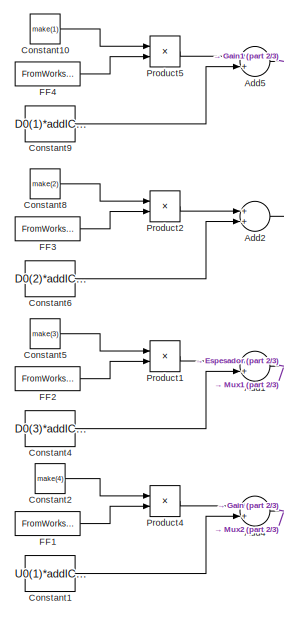
[diagram: root canvas - part 1/3, left side, full height]
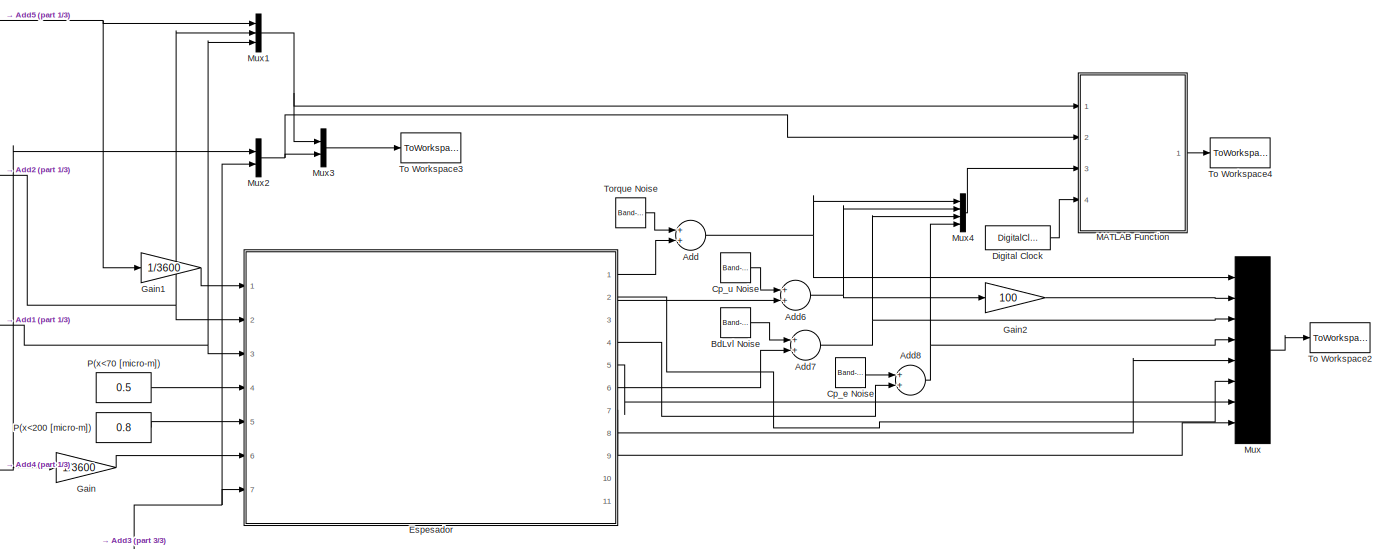
[diagram: root canvas - part 2/3, full width, middle band]
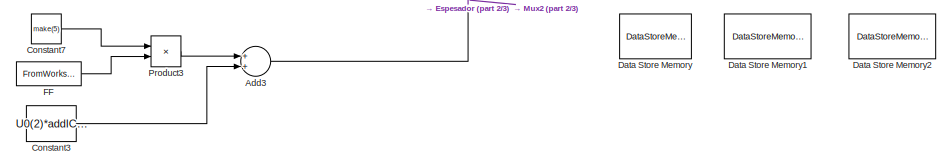
[diagram: root canvas - part 3/3, bottom left region]
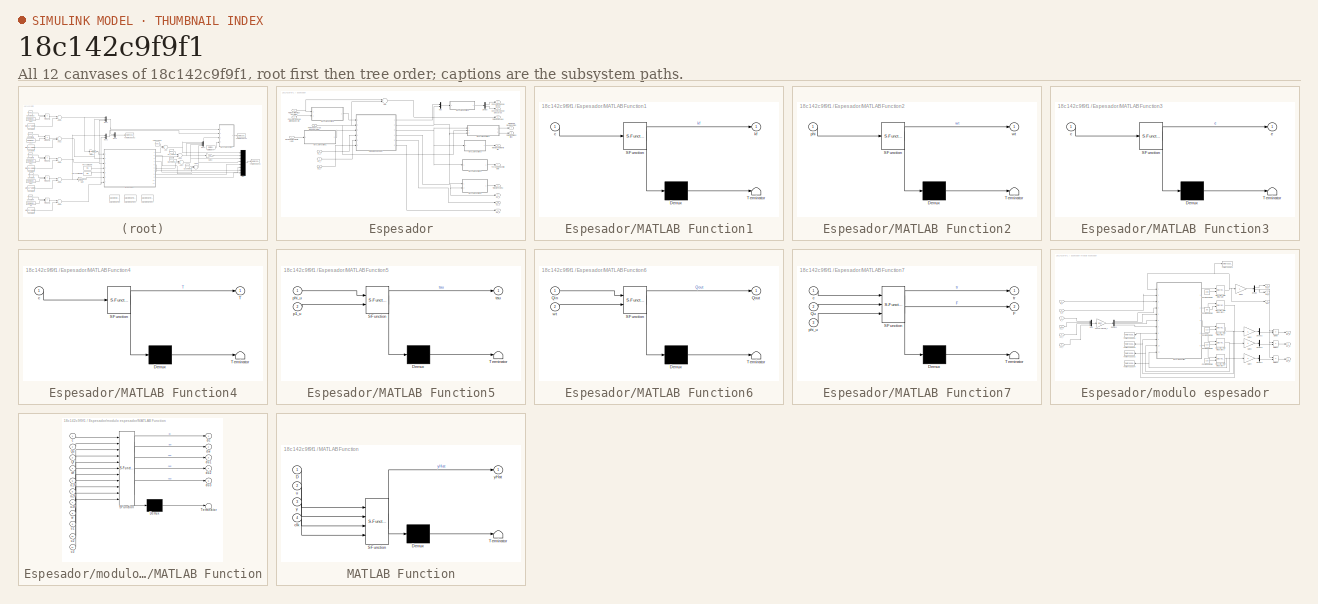
[diagram: thumbnail index - all 12 canvases of the model, root first then tree order]
MODEL slx_18c142c9f9f1
KIND model
CONFIG AbsTol = auto
CONFIG EnableMultiTasking = on
CONFIG FixedStep = auto
CONFIG MaxStep = auto
CONFIG MinStep = auto
CONFIG RelTol = 1e-3
CONFIG SampleTimeConstraint = Unconstrained
CONFIG Solver = VariableStepAuto
CONFIG SolverName = VariableStepAuto
CONFIG StartTime = 0.0
CONFIG StopTime = simTime
BLOCK [Sum] Add
  InputSameDT = off
  OutDataTypeStr = Inherit: Inherit via internal rule
  Ports = [2, 1]
  SaturateOnIntegerOverflow = off
BLOCK [Sum] Add1
  InputSameDT = off
  OutDataTypeStr = Inherit: Inherit via internal rule
  Ports = [2, 1]
  SaturateOnIntegerOverflow = off
BLOCK [Sum] Add2
  InputSameDT = off
  OutDataTypeStr = Inherit: Inherit via internal rule
  Ports = [2, 1]
  SaturateOnIntegerOverflow = off
BLOCK [Sum] Add3
  InputSameDT = off
  OutDataTypeStr = Inherit: Inherit via internal rule
  Ports = [2, 1]
  SaturateOnIntegerOverflow = off
BLOCK [Sum] Add4
  InputSameDT = off
  OutDataTypeStr = Inherit: Inherit via internal rule
  Ports = [2, 1]
  SaturateOnIntegerOverflow = off
BLOCK [Sum] Add5
  InputSameDT = off
  OutDataTypeStr = Inherit: Inherit via internal rule
  Ports = [2, 1]
  SaturateOnIntegerOverflow = off
BLOCK [Sum] Add6
  InputSameDT = off
  OutDataTypeStr = Inherit: Inherit via internal rule
  Ports = [2, 1]
  SaturateOnIntegerOverflow = off
BLOCK [Sum] Add7
  InputSameDT = off
  OutDataTypeStr = Inherit: Inherit via internal rule
  Ports = [2, 1]
  SaturateOnIntegerOverflow = off
BLOCK [Sum] Add8
  InputSameDT = off
  OutDataTypeStr = Inherit: Inherit via internal rule
  Ports = [2, 1]
  SaturateOnIntegerOverflow = off
BLOCK [Reference] BdLvl Noise  REF=simulink/Sources/Band-Limited
White Noise
  Ports = [0, 1]
  SourceBlock = simulink/Sources/Band-Limited\nWhite Noise
  SourceProductBaseCode = SL
  SourceProductName = Simulink
  SourceType = Band-Limited White Noise.
BLOCK [Constant] Constant1
  Value = U0(1)*addICInSimulation(4)
BLOCK [Constant] Constant10
  Value = make(1)
BLOCK [Constant] Constant2
  Value = make(4)
BLOCK [Constant] Constant3
  Value = U0(2)*addICInSimulation(5)
BLOCK [Constant] Constant4
  Value = D0(3)*addICInSimulation(3)
BLOCK [Constant] Constant5
  Value = make(3)
BLOCK [Constant] Constant6
  Value = D0(2)*addICInSimulation(2)
BLOCK [Constant] Constant7
  Value = make(5)
BLOCK [Constant] Constant8
  Value = make(2)
BLOCK [Constant] Constant9
  Value = D0(1)*addICInSimulation(1)
BLOCK [Reference] Cp_e Noise  REF=simulink/Sources/Band-Limited
White Noise
  Ports = [0, 1]
  SourceBlock = simulink/Sources/Band-Limited\nWhite Noise
  SourceProductBaseCode = SL
  SourceProductName = Simulink
  SourceType = Band-Limited White Noise.
BLOCK [Reference] Cp_u Noise  REF=simulink/Sources/Band-Limited
White Noise
  Ports = [0, 1]
  SourceBlock = simulink/Sources/Band-Limited\nWhite Noise
  SourceProductBaseCode = SL
  SourceProductName = Simulink
  SourceType = Band-Limited White Noise.
BLOCK [DataStoreMemory] Data Store Memory
  DataStoreName = uPastValues
  InitialValue = [U0]'*ones(1,maxUDelay);
  OutDataTypeStr = double
  ReadBeforeWriteMsg = warning
  ShowAdditionalParam = off
  SignalType = real
  VectorParams1D = off
  WriteAfterReadMsg = warning
  WriteAfterWriteMsg = warning
BLOCK [DataStoreMemory] Data Store Memory1
  DataStoreName = yPastValues
  InitialValue = Y0'*ones(1,maxYDelay)
  OutDataTypeStr = double
  ReadBeforeWriteMsg = warning
  ShowAdditionalParam = off
  SignalType = real
  VectorParams1D = off
  WriteAfterReadMsg = warning
  WriteAfterWriteMsg = warning
BLOCK [DataStoreMemory] Data Store Memory2
  DataStoreName = dPastValues
  InitialValue = D0'*ones(1,maxDDelay)
  OutDataTypeStr = double
  ReadBeforeWriteMsg = warning
  ShowAdditionalParam = off
  SignalType = real
  VectorParams1D = off
  WriteAfterReadMsg = warning
  WriteAfterWriteMsg = warning
BLOCK [DigitalClock] Digital Clock
BLOCK [SubSystem] Espesador
  Ports = [7, 11]
  RequestExecContextInheritance = off
  Variant = off
BLOCK [Sum] Espesador/Add
  InputSameDT = off
  Inputs = +-
  OutDataTypeStr = Inherit: Inherit via internal rule
  Ports = [2, 1]
  SaturateOnIntegerOverflow = off
BLOCK [Inport] Espesador/Concentracion de Alimentacion (wt)
  IconDisplay = Port number
  Port = 2
BLOCK [Outport] Espesador/Concentracion de Descarga
  IconDisplay = Port number
  Port = 3
BLOCK [Outport] Espesador/Concentracion de Revlse
  IconDisplay = Port number
  Port = 4
BLOCK [Demux] Espesador/Demux
  DisplayOption = bar
  Outputs = 2
  Ports = [1, 2]
BLOCK [Inport] Espesador/Dosis de Floculante (gpt)
  IconDisplay = Port number
  Port = 7
BLOCK [Inport] Espesador/Flujo de Alimentacion (m3//s)
  IconDisplay = Port number
BLOCK [Inport] Espesador/Flujo de Descarga Entrada (m3//s)
  IconDisplay = Port number
  Port = 6
BLOCK [Outport] Espesador/Flujo de Revalse
  IconDisplay = Port number
  Port = 5
BLOCK [Outport] Espesador/Flujo de Solidos [tpd]
  IconDisplay = Port number
  Port = 8
BLOCK [SubSystem] Espesador/MATLAB Function1
  ErrorFcn = Stateflow.Translate.translate
  PermitHierarchicalResolution = ExplicitOnly
  Ports = [1, 1]
  RequestExecContextInheritance = off
  SFBlockType = MATLAB Function
  TreatAsAtomicUnit = on
  Variant = off
BLOCK [Demux] Espesador/MATLAB Function1/ Demux 
  Outputs = 1
  Ports = [1, 1]
BLOCK [S-Function] Espesador/MATLAB Function1/ SFunction 
  EnableBusSupport = on
  FunctionName = sf_sfun
  Parameters = b0,b1,b2,b3,b4,v_max
  PortCounts = [1 2]
  Ports = [1, 2]
  SFcnIsStateOwnerBlock = off
  SFunctionDeploymentMode = off
  Tag = Stateflow S-Function rf_thickener_open_loop_prbs 1
BLOCK [Terminator] Espesador/MATLAB Function1/ Terminator 
BLOCK [Inport] Espesador/MATLAB Function1/c
  IconDisplay = Port number
BLOCK [Outport] Espesador/MATLAB Function1/kf
  IconDisplay = Port number
BLOCK [SubSystem] Espesador/MATLAB Function2
  ErrorFcn = Stateflow.Translate.translate
  PermitHierarchicalResolution = ExplicitOnly
  Ports = [1, 1]
  RequestExecContextInheritance = off
  SFBlockType = MATLAB Function
  TreatAsAtomicUnit = on
  Variant = off
BLOCK [Demux] Espesador/MATLAB Function2/ Demux 
  Outputs = 1
  Ports = [1, 1]
BLOCK [S-Function] Espesador/MATLAB Function2/ SFunction 
  EnableBusSupport = on
  FunctionName = sf_sfun
  Parameters = rho_f,rho_s
  PortCounts = [1 2]
  Ports = [1, 2]
  SFcnIsStateOwnerBlock = off
  SFunctionDeploymentMode = off
  Tag = Stateflow S-Function rf_thickener_open_loop_prbs 3
BLOCK [Terminator] Espesador/MATLAB Function2/ Terminator 
BLOCK [Inport] Espesador/MATLAB Function2/phi
  IconDisplay = Port number
BLOCK [Outport] Espesador/MATLAB Function2/wt
  IconDisplay = Port number
BLOCK [SubSystem] Espesador/MATLAB Function3
  ErrorFcn = Stateflow.Translate.translate
  PermitHierarchicalResolution = ExplicitOnly
  Ports = [1, 1]
  RequestExecContextInheritance = off
  SFBlockType = MATLAB Function
  TreatAsAtomicUnit = on
  Variant = off
BLOCK [Demux] Espesador/MATLAB Function3/ Demux 
  Outputs = 1
  Ports = [1, 1]
BLOCK [S-Function] Espesador/MATLAB Function3/ SFunction 
  EnableBusSupport = on
  FunctionName = sf_sfun
  Parameters = B,Z,phi_c
  PortCounts = [1 2]
  Ports = [1, 2]
  SFcnIsStateOwnerBlock = off
  SFunctionDeploymentMode = off
  Tag = Stateflow S-Function rf_thickener_open_loop_prbs 4
BLOCK [Terminator] Espesador/MATLAB Function3/ Terminator 
BLOCK [Inport] Espesador/MATLAB Function3/c
  IconDisplay = Port number
BLOCK [Outport] Espesador/MATLAB Function3/e
  IconDisplay = Port number
BLOCK [SubSystem] Espesador/MATLAB Function4
  ErrorFcn = Stateflow.Translate.translate
  PermitHierarchicalResolution = ExplicitOnly
  Ports = [1, 1]
  RequestExecContextInheritance = off
  SFBlockType = MATLAB Function
  TreatAsAtomicUnit = on
  Variant = off
BLOCK [Demux] Espesador/MATLAB Function4/ Demux 
  Outputs = 1
  Ports = [1, 1]
BLOCK [S-Function] Espesador/MATLAB Function4/ SFunction 
  EnableBusSupport = on
  FunctionName = sf_sfun
  Parameters = Cz,a1,a2,a3
  PortCounts = [1 2]
  Ports = [1, 2]
  SFcnIsStateOwnerBlock = off
  SFunctionDeploymentMode = off
  Tag = Stateflow S-Function rf_thickener_open_loop_prbs 5
BLOCK [Terminator] Espesador/MATLAB Function4/ Terminator 
BLOCK [Outport] Espesador/MATLAB Function4/T
  IconDisplay = Port number
BLOCK [Inport] Espesador/MATLAB Function4/c
  IconDisplay = Port number
BLOCK [SubSystem] Espesador/MATLAB Function5
  ErrorFcn = Stateflow.Translate.translate
  PermitHierarchicalResolution = ExplicitOnly
  Ports = [2, 1]
  RequestExecContextInheritance = off
  SFBlockType = MATLAB Function
  TreatAsAtomicUnit = on
  Variant = off
BLOCK [Demux] Espesador/MATLAB Function5/ Demux 
  Outputs = 1
  Ports = [1, 1]
BLOCK [S-Function] Espesador/MATLAB Function5/ SFunction 
  EnableBusSupport = on
  FunctionName = sf_sfun
  Parameters = c0,c1,kappa,m,rho_f,rho_s,theta
  PortCounts = [2 2]
  Ports = [2, 2]
  SFcnIsStateOwnerBlock = off
  SFunctionDeploymentMode = off
  Tag = Stateflow S-Function rf_thickener_open_loop_prbs 6
BLOCK [Terminator] Espesador/MATLAB Function5/ Terminator 
BLOCK [Inport] Espesador/MATLAB Function5/p1_u
  IconDisplay = Port number
  Port = 2
BLOCK [Inport] Espesador/MATLAB Function5/phi_u
  IconDisplay = Port number
BLOCK [Outport] Espesador/MATLAB Function5/tau
  IconDisplay = Port number
BLOCK [SubSystem] Espesador/MATLAB Function6
  ErrorFcn = Stateflow.Translate.translate
  PermitHierarchicalResolution = ExplicitOnly
  Ports = [2, 1]
  RequestExecContextInheritance = off
  SFBlockType = MATLAB Function
  TreatAsAtomicUnit = on
  Variant = off
BLOCK [Demux] Espesador/MATLAB Function6/ Demux 
  Outputs = 1
  Ports = [1, 1]
BLOCK [S-Function] Espesador/MATLAB Function6/ SFunction 
  EnableBusSupport = on
  FunctionName = sf_sfun
  Parameters = phi_f,rho_f,rho_s
  PortCounts = [2 2]
  Ports = [2, 2]
  SFcnIsStateOwnerBlock = off
  SFunctionDeploymentMode = off
  Tag = Stateflow S-Function rf_thickener_open_loop_prbs 7
BLOCK [Terminator] Espesador/MATLAB Function6/ Terminator 
BLOCK [Inport] Espesador/MATLAB Function6/Qin
  IconDisplay = Port number
BLOCK [Outport] Espesador/MATLAB Function6/Qout
  IconDisplay = Port number
BLOCK [Inport] Espesador/MATLAB Function6/wt
  IconDisplay = Port number
  Port = 2
BLOCK [SubSystem] Espesador/MATLAB Function7
  ErrorFcn = Stateflow.Translate.translate
  PermitHierarchicalResolution = ExplicitOnly
  Ports = [3, 2]
  RequestExecContextInheritance = off
  SFBlockType = MATLAB Function
  TreatAsAtomicUnit = on
  Variant = off
BLOCK [Demux] Espesador/MATLAB Function7/ Demux 
  Outputs = 1
  Ports = [1, 1]
BLOCK [S-Function] Espesador/MATLAB Function7/ SFunction 
  EnableBusSupport = on
  FunctionName = sf_sfun
  Parameters = A,Dz,rho_s
  PortCounts = [3 3]
  Ports = [3, 3]
  SFcnIsStateOwnerBlock = off
  SFunctionDeploymentMode = off
  Tag = Stateflow S-Function rf_thickener_open_loop_prbs 8
BLOCK [Terminator] Espesador/MATLAB Function7/ Terminator 
BLOCK [Outport] Espesador/MATLAB Function7/F
  IconDisplay = Port number
  Port = 2
BLOCK [Inport] Espesador/MATLAB Function7/Qu
  IconDisplay = Port number
  Port = 2
BLOCK [Inport] Espesador/MATLAB Function7/c
  IconDisplay = Port number
BLOCK [Inport] Espesador/MATLAB Function7/phi_u
  IconDisplay = Port number
  Port = 3
BLOCK [Outport] Espesador/MATLAB Function7/tr
  IconDisplay = Port number
BLOCK [Mux] Espesador/Mux
  DisplayOption = bar
  Inputs = 2
  Ports = [2, 1]
BLOCK [Outport] Espesador/Nivel de Sedimento [m]
  IconDisplay = Port number
  Port = 6
BLOCK [Outport] Espesador/Tiempo de Residencia [h]
  IconDisplay = Port number
  Port = 7
BLOCK [Outport] Espesador/Torque de Rastrillo [Nm]
  IconDisplay = Port number
BLOCK [Outport] Espesador/Yield Stress [Pa]
  IconDisplay = Port number
  Port = 2
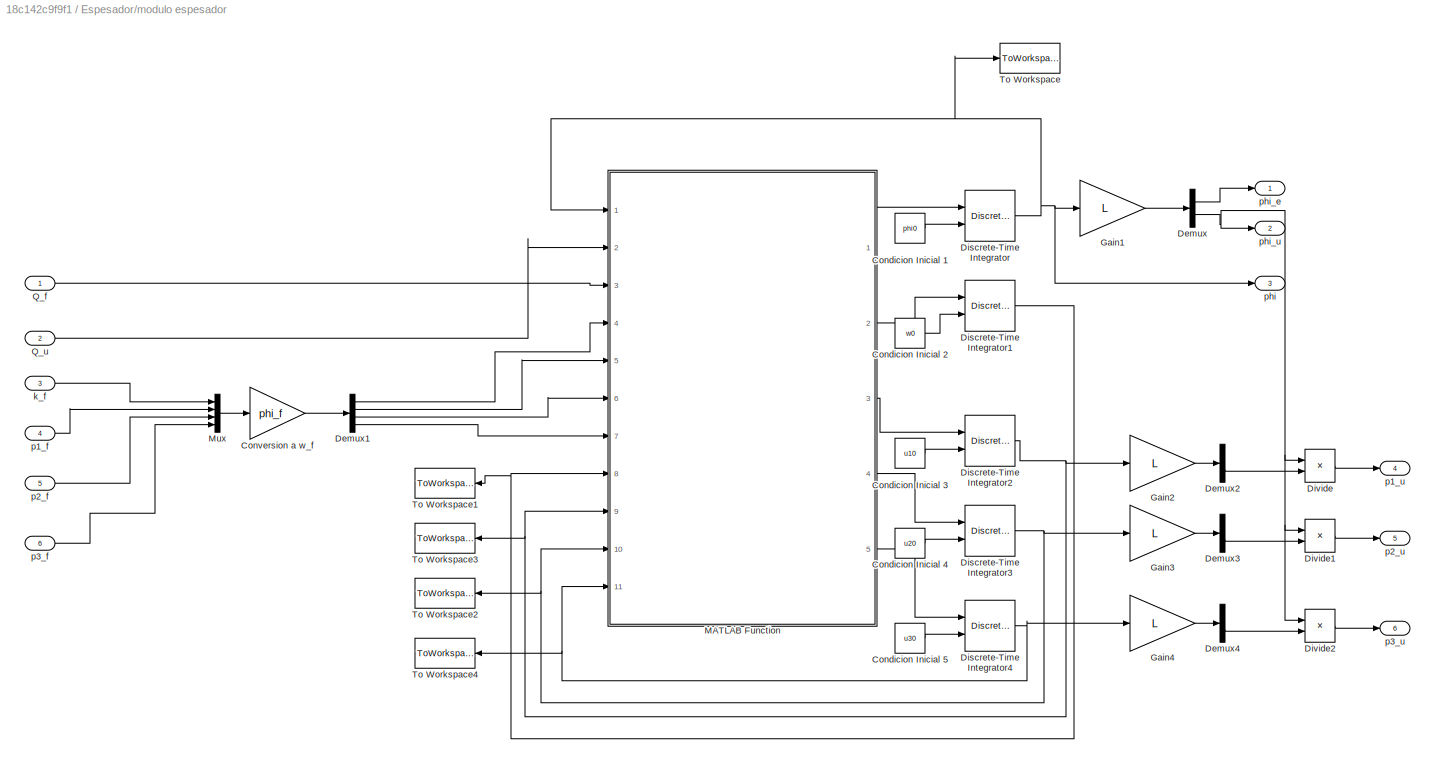
BLOCK [SubSystem] Espesador/modulo espesador
  Ports = [6, 6]
  RequestExecContextInheritance = off
  Variant = off
BLOCK [Constant] Espesador/modulo espesador/Condicion Inicial 1
  Value = phi0
BLOCK [Constant] Espesador/modulo espesador/Condicion Inicial 2
  Value = w0
BLOCK [Constant] Espesador/modulo espesador/Condicion Inicial 3
  Value = u10
BLOCK [Constant] Espesador/modulo espesador/Condicion Inicial 4
  Value = u20
BLOCK [Constant] Espesador/modulo espesador/Condicion Inicial 5
  Value = u30
BLOCK [Gain] Espesador/modulo espesador/Conversion a w_f
  Gain = phi_f
  OutDataTypeStr = Inherit: Inherit via internal rule
  ParamDataTypeStr = Inherit: Inherit via internal rule
  SaturateOnIntegerOverflow = off
BLOCK [Demux] Espesador/modulo espesador/Demux
  DisplayOption = bar
  Outputs = 2
  Ports = [1, 2]
BLOCK [Demux] Espesador/modulo espesador/Demux1
  DisplayOption = bar
  Ports = [1, 4]
BLOCK [Demux] Espesador/modulo espesador/Demux2
  DisplayOption = bar
  Outputs = 2
  Ports = [1, 2]
BLOCK [Demux] Espesador/modulo espesador/Demux3
  DisplayOption = bar
  Outputs = 2
  Ports = [1, 2]
BLOCK [Demux] Espesador/modulo espesador/Demux4
  DisplayOption = bar
  Outputs = 2
  Ports = [1, 2]
BLOCK [DiscreteIntegrator] Espesador/modulo espesador/Discrete-Time Integrator
  ICPrevOutput = DiscIntNeverNeededParam
  ICPrevScaledInput = DiscIntNeverNeededParam
  InitialConditionSetting = State (most efficient)
  InitialConditionSource = external
  Ports = [2, 1]
  SampleTime = Dt
BLOCK [DiscreteIntegrator] Espesador/modulo espesador/Discrete-Time Integrator1
  ICPrevOutput = DiscIntNeverNeededParam
  ICPrevScaledInput = DiscIntNeverNeededParam
  InitialConditionSetting = State (most efficient)
  InitialConditionSource = external
  Ports = [2, 1]
  SampleTime = Dt
BLOCK [DiscreteIntegrator] Espesador/modulo espesador/Discrete-Time Integrator2
  ICPrevOutput = DiscIntNeverNeededParam
  ICPrevScaledInput = DiscIntNeverNeededParam
  InitialConditionSetting = State (most efficient)
  InitialConditionSource = external
  Ports = [2, 1]
  SampleTime = Dt
BLOCK [DiscreteIntegrator] Espesador/modulo espesador/Discrete-Time Integrator3
  ICPrevOutput = DiscIntNeverNeededParam
  ICPrevScaledInput = DiscIntNeverNeededParam
  InitialConditionSetting = State (most efficient)
  InitialConditionSource = external
  Ports = [2, 1]
  SampleTime = Dt
BLOCK [DiscreteIntegrator] Espesador/modulo espesador/Discrete-Time Integrator4
  ICPrevOutput = DiscIntNeverNeededParam
  ICPrevScaledInput = DiscIntNeverNeededParam
  InitialConditionSetting = State (most efficient)
  InitialConditionSource = external
  Ports = [2, 1]
  SampleTime = Dt
BLOCK [Product] Espesador/modulo espesador/Divide
  InputSameDT = off
  Inputs = /*
  OutDataTypeStr = Inherit: Inherit via internal rule
  Ports = [2, 1]
  RndMeth = Floor
  SaturateOnIntegerOverflow = off
BLOCK [Product] Espesador/modulo espesador/Divide1
  InputSameDT = off
  Inputs = /*
  OutDataTypeStr = Inherit: Inherit via internal rule
  Ports = [2, 1]
  RndMeth = Floor
  SaturateOnIntegerOverflow = off
BLOCK [Product] Espesador/modulo espesador/Divide2
  InputSameDT = off
  Inputs = /*
  OutDataTypeStr = Inherit: Inherit via internal rule
  Ports = [2, 1]
  RndMeth = Floor
  SaturateOnIntegerOverflow = off
BLOCK [Gain] Espesador/modulo espesador/Gain1
  Gain = L
  Multiplication = Matrix(K*u) (u vector)
  OutDataTypeStr = Inherit: Inherit via internal rule
  ParamDataTypeStr = Inherit: Inherit via internal rule
  SaturateOnIntegerOverflow = off
BLOCK [Gain] Espesador/modulo espesador/Gain2
  Gain = L
  Multiplication = Matrix(K*u) (u vector)
  OutDataTypeStr = Inherit: Inherit via internal rule
  ParamDataTypeStr = Inherit: Inherit via internal rule
  SaturateOnIntegerOverflow = off
BLOCK [Gain] Espesador/modulo espesador/Gain3
  Gain = L
  Multiplication = Matrix(K*u) (u vector)
  OutDataTypeStr = Inherit: Inherit via internal rule
  ParamDataTypeStr = Inherit: Inherit via internal rule
  SaturateOnIntegerOverflow = off
BLOCK [Gain] Espesador/modulo espesador/Gain4
  Gain = L
  Multiplication = Matrix(K*u) (u vector)
  OutDataTypeStr = Inherit: Inherit via internal rule
  ParamDataTypeStr = Inherit: Inherit via internal rule
  SaturateOnIntegerOverflow = off
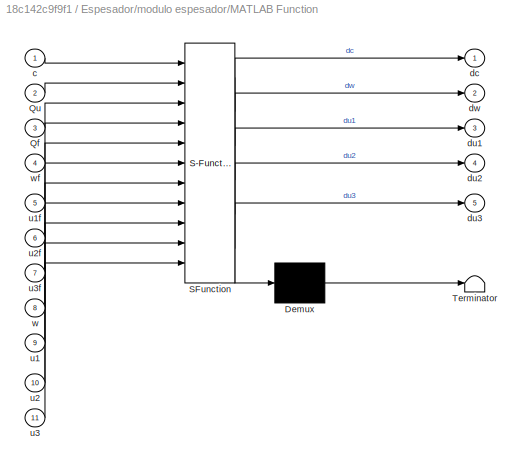
BLOCK [SubSystem] Espesador/modulo espesador/MATLAB Function
  ErrorFcn = Stateflow.Translate.translate
  PermitHierarchicalResolution = ExplicitOnly
  Ports = [11, 5]
  RequestExecContextInheritance = off
  SFBlockType = MATLAB Function
  TreatAsAtomicUnit = on
  Variant = off
BLOCK [Demux] Espesador/modulo espesador/MATLAB Function/ Demux 
  Outputs = 1
  Ports = [1, 1]
BLOCK [S-Function] Espesador/modulo espesador/MATLAB Function/ SFunction 
  EnableBusSupport = on
  FunctionName = sf_sfun
  Parameters = Cdata,Ddata,Dt,N,jf,lambda,mu,n_rz,phi_f,v_max,y
  PortCounts = [11 6]
  Ports = [11, 6]
  SFcnIsStateOwnerBlock = off
  SFunctionDeploymentMode = off
  Tag = Stateflow S-Function rf_thickener_open_loop_prbs 2
BLOCK [Terminator] Espesador/modulo espesador/MATLAB Function/ Terminator 
BLOCK [Inport] Espesador/modulo espesador/MATLAB Function/Qf
  IconDisplay = Port number
  Port = 3
BLOCK [Inport] Espesador/modulo espesador/MATLAB Function/Qu
  IconDisplay = Port number
  Port = 2
BLOCK [Inport] Espesador/modulo espesador/MATLAB Function/c
  IconDisplay = Port number
BLOCK [Outport] Espesador/modulo espesador/MATLAB Function/dc
  IconDisplay = Port number
BLOCK [Outport] Espesador/modulo espesador/MATLAB Function/du1
  IconDisplay = Port number
  Port = 3
BLOCK [Outport] Espesador/modulo espesador/MATLAB Function/du2
  IconDisplay = Port number
  Port = 4
BLOCK [Outport] Espesador/modulo espesador/MATLAB Function/du3
  IconDisplay = Port number
  Port = 5
BLOCK [Outport] Espesador/modulo espesador/MATLAB Function/dw
  IconDisplay = Port number
  Port = 2
BLOCK [Inport] Espesador/modulo espesador/MATLAB Function/u1
  IconDisplay = Port number
  Port = 9
BLOCK [Inport] Espesador/modulo espesador/MATLAB Function/u1f
  IconDisplay = Port number
  Port = 5
BLOCK [Inport] Espesador/modulo espesador/MATLAB Function/u2
  IconDisplay = Port number
  Port = 10
BLOCK [Inport] Espesador/modulo espesador/MATLAB Function/u2f
  IconDisplay = Port number
  Port = 6
BLOCK [Inport] Espesador/modulo espesador/MATLAB Function/u3
  IconDisplay = Port number
  Port = 11
BLOCK [Inport] Espesador/modulo espesador/MATLAB Function/u3f
  IconDisplay = Port number
  Port = 7
BLOCK [Inport] Espesador/modulo espesador/MATLAB Function/w
  IconDisplay = Port number
  Port = 8
BLOCK [Inport] Espesador/modulo espesador/MATLAB Function/wf
  IconDisplay = Port number
  Port = 4
BLOCK [Mux] Espesador/modulo espesador/Mux
  DisplayOption = bar
  Ports = [4, 1]
BLOCK [Inport] Espesador/modulo espesador/Q_f
  IconDisplay = Port number
BLOCK [Inport] Espesador/modulo espesador/Q_u
  IconDisplay = Port number
  Port = 2
BLOCK [ToWorkspace] Espesador/modulo espesador/To Workspace
  FixptAsFi = on
  MaxDataPoints = 1
  Ports = [1]
  SampleTime = -1
  Save2DSignal = 3-D array (concatenate along third dimension)
  VariableName = phi0
BLOCK [ToWorkspace] Espesador/modulo espesador/To Workspace1
  FixptAsFi = on
  MaxDataPoints = 1
  Ports = [1]
  SampleTime = -1
  Save2DSignal = 3-D array (concatenate along third dimension)
  VariableName = w0
BLOCK [ToWorkspace] Espesador/modulo espesador/To Workspace2
  FixptAsFi = on
  MaxDataPoints = 1
  Ports = [1]
  SampleTime = -1
  Save2DSignal = 3-D array (concatenate along third dimension)
  VariableName = u20
BLOCK [ToWorkspace] Espesador/modulo espesador/To Workspace3
  FixptAsFi = on
  MaxDataPoints = 1
  Ports = [1]
  SampleTime = -1
  Save2DSignal = 3-D array (concatenate along third dimension)
  VariableName = u10
BLOCK [ToWorkspace] Espesador/modulo espesador/To Workspace4
  FixptAsFi = on
  MaxDataPoints = 1
  Ports = [1]
  SampleTime = -1
  Save2DSignal = 3-D array (concatenate along third dimension)
  VariableName = u30
BLOCK [Inport] Espesador/modulo espesador/k_f
  IconDisplay = Port number
  Port = 3
BLOCK [Inport] Espesador/modulo espesador/p1_f
  IconDisplay = Port number
  Port = 4
BLOCK [Outport] Espesador/modulo espesador/p1_u
  IconDisplay = Port number
  Port = 4
BLOCK [Inport] Espesador/modulo espesador/p2_f 
  IconDisplay = Port number
  Port = 5
BLOCK [Outport] Espesador/modulo espesador/p2_u
  IconDisplay = Port number
  Port = 5
BLOCK [Inport] Espesador/modulo espesador/p3_f
  IconDisplay = Port number
  Port = 6
BLOCK [Outport] Espesador/modulo espesador/p3_u
  IconDisplay = Port number
  Port = 6
BLOCK [Outport] Espesador/modulo espesador/phi
  IconDisplay = Port number
  Port = 3
BLOCK [Outport] Espesador/modulo espesador/phi_e
  IconDisplay = Port number
BLOCK [Outport] Espesador/modulo espesador/phi_u
  IconDisplay = Port number
  Port = 2
BLOCK [Inport] Espesador/p1_f
  IconDisplay = Port number
  Port = 3
BLOCK [Outport] Espesador/p1_u 
  IconDisplay = Port number
  Port = 9
BLOCK [Inport] Espesador/p2_f
  IconDisplay = Port number
  Port = 4
BLOCK [Outport] Espesador/p2_u 
  IconDisplay = Port number
  Port = 10
BLOCK [Inport] Espesador/p3_f
  IconDisplay = Port number
  Port = 5
BLOCK [Outport] Espesador/p3_u
  IconDisplay = Port number
  Port = 11
BLOCK [FromWorkspace] FF
  SampleTime = Dt
  VariableName = gpt
  ZeroCross = on
BLOCK [FromWorkspace] FF1
  SampleTime = Dt
  VariableName = Q_u
  ZeroCross = on
BLOCK [FromWorkspace] FF2
  SampleTime = Dt
  VariableName = p1_f
  ZeroCross = on
BLOCK [FromWorkspace] FF3
  SampleTime = Dt
  VariableName = Cp_f
  ZeroCross = on
BLOCK [FromWorkspace] FF4
  SampleTime = Dt
  VariableName = Q_f
  ZeroCross = on
BLOCK [Gain] Gain
  Gain = 1/3600
  OutDataTypeStr = Inherit: Inherit via internal rule
  ParamDataTypeStr = Inherit: Inherit via internal rule
  SaturateOnIntegerOverflow = off
BLOCK [Gain] Gain1
  Gain = 1/3600
  OutDataTypeStr = Inherit: Inherit via internal rule
  ParamDataTypeStr = Inherit: Inherit via internal rule
  SaturateOnIntegerOverflow = off
BLOCK [Gain] Gain2
  Gain = 100
  OutDataTypeStr = Inherit: Inherit via internal rule
  ParamDataTypeStr = Inherit: Inherit via internal rule
  SaturateOnIntegerOverflow = off
BLOCK [SubSystem] MATLAB Function
  ErrorFcn = Stateflow.Translate.translate
  PermitHierarchicalResolution = ExplicitOnly
  Ports = [4, 1]
  RequestExecContextInheritance = off
  SFBlockType = MATLAB Function
  TreatAsAtomicUnit = on
  Variant = off
BLOCK [Demux] MATLAB Function/ Demux 
  Outputs = 1
  Ports = [1, 1]
BLOCK [S-Function] MATLAB Function/ SFunction 
  EnableBusSupport = on
  FunctionName = sf_sfun
  Parameters = nPredictors,nTrees,na,nb,nc,tau_R
  PortCounts = [4 2]
  Ports = [4, 2]
  SFcnIsStateOwnerBlock = off
  SFunctionDeploymentMode = off
  Tag = Stateflow S-Function rf_thickener_open_loop_prbs 9
BLOCK [Terminator] MATLAB Function/ Terminator 
BLOCK [Inport] MATLAB Function/D
  IconDisplay = Port number
BLOCK [Inport] MATLAB Function/clk
  IconDisplay = Port number
  Port = 4
BLOCK [Inport] MATLAB Function/u
  IconDisplay = Port number
  Port = 2
BLOCK [Inport] MATLAB Function/y
  IconDisplay = Port number
  Port = 3
BLOCK [Outport] MATLAB Function/yHat
  IconDisplay = Port number
BLOCK [Mux] Mux
  DisplayOption = bar
  Inputs = 8
  Ports = [8, 1]
BLOCK [Mux] Mux1
  DisplayOption = bar
  Inputs = 3
  Ports = [3, 1]
BLOCK [Mux] Mux2
  DisplayOption = bar
  Inputs = 2
  Ports = [2, 1]
BLOCK [Mux] Mux3
  DisplayOption = bar
  Inputs = 2
  Ports = [2, 1]
BLOCK [Mux] Mux4
  DisplayOption = bar
  Ports = [4, 1]
BLOCK [Constant] P(x<200 [micro-m])
  Value = 0.8
BLOCK [Constant] P(x<70 [micro-m])
  Value = 0.5
BLOCK [Product] Product1
  InputSameDT = off
  OutDataTypeStr = Inherit: Inherit via internal rule
  Ports = [2, 1]
  RndMeth = Floor
  SaturateOnIntegerOverflow = off
BLOCK [Product] Product2
  InputSameDT = off
  OutDataTypeStr = Inherit: Inherit via internal rule
  Ports = [2, 1]
  RndMeth = Floor
  SaturateOnIntegerOverflow = off
BLOCK [Product] Product3
  InputSameDT = off
  OutDataTypeStr = Inherit: Inherit via internal rule
  Ports = [2, 1]
  RndMeth = Floor
  SaturateOnIntegerOverflow = off
BLOCK [Product] Product4
  InputSameDT = off
  OutDataTypeStr = Inherit: Inherit via internal rule
  Ports = [2, 1]
  RndMeth = Floor
  SaturateOnIntegerOverflow = off
BLOCK [Product] Product5
  InputSameDT = off
  OutDataTypeStr = Inherit: Inherit via internal rule
  Ports = [2, 1]
  RndMeth = Floor
  SaturateOnIntegerOverflow = off
BLOCK [ToWorkspace] To Workspace2
  FixptAsFi = on
  MaxDataPoints = inf
  Ports = [1]
  SampleTime = -1
  Save2DSignal = 3-D array (concatenate along third dimension)
  SaveFormat = Structure With Time
  VariableName = y
BLOCK [ToWorkspace] To Workspace3
  FixptAsFi = on
  MaxDataPoints = inf
  Ports = [1]
  SampleTime = -1
  Save2DSignal = 3-D array (concatenate along third dimension)
  SaveFormat = Structure With Time
  VariableName = inputs
BLOCK [ToWorkspace] To Workspace4
  FixptAsFi = on
  MaxDataPoints = inf
  Ports = [1]
  SampleTime = -1
  Save2DSignal = 3-D array (concatenate along third dimension)
  SaveFormat = Structure With Time
  VariableName = yHat
BLOCK [Reference] Torque Noise  REF=simulink/Sources/Band-Limited
White Noise
  Ports = [0, 1]
  SourceBlock = simulink/Sources/Band-Limited\nWhite Noise
  SourceProductBaseCode = SL
  SourceProductName = Simulink
  SourceType = Band-Limited White Noise.
NET Add1:1 -> Espesador:3, Mux1:3
NET Add2:1 -> Espesador:2, Mux1:2
NET Add3:1 -> Espesador:7, Mux2:2
NET Add4:1 -> Gain:1, Mux2:1
NET Add5:1 -> Gain1:1, Mux1:1
NET Add6:1 -> Gain2:1, Mux4:2
NET Add7:1 -> Mux4:3, Mux:3
NET Add8:1 -> Mux4:4, Mux:4
NET Add:1 -> Mux4:1, Mux:1
LINE BdLvl Noise:1 -> Add7:1
LINE Constant10:1 -> Product5:1
LINE Constant1:1 -> Add4:2
LINE Constant2:1 -> Product4:1
LINE Constant3:1 -> Add3:2
LINE Constant4:1 -> Add1:2
LINE Constant5:1 -> Product1:1
LINE Constant6:1 -> Add2:2
LINE Constant7:1 -> Product3:1
LINE Constant8:1 -> Product2:1
LINE Constant9:1 -> Add5:2
LINE Cp_e Noise:1 -> Add8:1
LINE Cp_u Noise:1 -> Add6:1
LINE Digital Clock:1 -> MATLAB Function:4
LINE Espesador/Add:1 -> Espesador/Flujo de Revalse:1
LINE Espesador/Concentracion de Alimentacion (wt):1 -> Espesador/MATLAB Function6:2
LINE Espesador/Demux:1 -> Espesador/Concentracion de Revlse:1
LINE Espesador/Demux:2 -> Espesador/Concentracion de Descarga:1
LINE Espesador/Dosis de Floculante (gpt):1 -> Espesador/MATLAB Function1:1
NET Espesador/Flujo de Alimentacion (m3//s):1 -> Espesador/Add:1, Espesador/MATLAB Function6:1
NET Espesador/Flujo de Descarga Entrada (m3//s):1 -> Espesador/Add:2, Espesador/MATLAB Function7:2, Espesador/modulo espesador:2
LINE Espesador/MATLAB Function1:1 -> Espesador/modulo espesador:3
LINE Espesador/MATLAB Function2:1 -> Espesador/Demux:1
LINE Espesador/MATLAB Function3:1 -> Espesador/Nivel de Sedimento [m]:1
LINE Espesador/MATLAB Function4:1 -> Espesador/Torque de Rastrillo [Nm]:1
LINE Espesador/MATLAB Function5:1 -> Espesador/Yield Stress [Pa]:1
LINE Espesador/MATLAB Function6:1 -> Espesador/modulo espesador:1
LINE Espesador/MATLAB Function7:1 -> Espesador/Tiempo de Residencia [h]:1
LINE Espesador/MATLAB Function7:2 -> Espesador/Flujo de Solidos [tpd]:1
LINE Espesador/Mux:1 -> Espesador/MATLAB Function2:1
LINE Espesador/modulo espesador/Condicion Inicial 1:1 -> Espesador/modulo espesador/Discrete-Time Integrator:2
LINE Espesador/modulo espesador/Condicion Inicial 2:1 -> Espesador/modulo espesador/Discrete-Time Integrator1:2
LINE Espesador/modulo espesador/Condicion Inicial 3:1 -> Espesador/modulo espesador/Discrete-Time Integrator2:2
LINE Espesador/modulo espesador/Condicion Inicial 4:1 -> Espesador/modulo espesador/Discrete-Time Integrator3:2
LINE Espesador/modulo espesador/Condicion Inicial 5:1 -> Espesador/modulo espesador/Discrete-Time Integrator4:2
LINE Espesador/modulo espesador/Conversion a w_f:1 -> Espesador/modulo espesador/Demux1:1
LINE Espesador/modulo espesador/Demux1:1 -> Espesador/modulo espesador/MATLAB Function:4
LINE Espesador/modulo espesador/Demux1:2 -> Espesador/modulo espesador/MATLAB Function:5
LINE Espesador/modulo espesador/Demux1:3 -> Espesador/modulo espesador/MATLAB Function:6
LINE Espesador/modulo espesador/Demux1:4 -> Espesador/modulo espesador/MATLAB Function:7
LINE Espesador/modulo espesador/Demux2:2 -> Espesador/modulo espesador/Divide:2
LINE Espesador/modulo espesador/Demux3:2 -> Espesador/modulo espesador/Divide1:2
LINE Espesador/modulo espesador/Demux4:2 -> Espesador/modulo espesador/Divide2:2
LINE Espesador/modulo espesador/Demux:1 -> Espesador/modulo espesador/phi_e:1
NET Espesador/modulo espesador/Demux:2 -> Espesador/modulo espesador/Divide1:1, Espesador/modulo espesador/Divide2:1, Espesador/modulo espesador/Divide:1, Espesador/modulo espesador/phi_u:1
NET Espesador/modulo espesador/Discrete-Time Integrator1:1 -> Espesador/modulo espesador/MATLAB Function:8, Espesador/modulo espesador/To Workspace1:1
NET Espesador/modulo espesador/Discrete-Time Integrator2:1 -> Espesador/modulo espesador/Gain2:1, Espesador/modulo espesador/MATLAB Function:9, Espesador/modulo espesador/To Workspace3:1
NET Espesador/modulo espesador/Discrete-Time Integrator3:1 -> Espesador/modulo espesador/Gain3:1, Espesador/modulo espesador/MATLAB Function:10, Espesador/modulo espesador/To Workspace2:1
NET Espesador/modulo espesador/Discrete-Time Integrator4:1 -> Espesador/modulo espesador/Gain4:1, Espesador/modulo espesador/MATLAB Function:11, Espesador/modulo espesador/To Workspace4:1
NET Espesador/modulo espesador/Discrete-Time Integrator:1 -> Espesador/modulo espesador/Gain1:1, Espesador/modulo espesador/MATLAB Function:1, Espesador/modulo espesador/To Workspace:1, Espesador/modulo espesador/phi:1
LINE Espesador/modulo espesador/Divide1:1 -> Espesador/modulo espesador/p2_u:1
LINE Espesador/modulo espesador/Divide2:1 -> Espesador/modulo espesador/p3_u:1
LINE Espesador/modulo espesador/Divide:1 -> Espesador/modulo espesador/p1_u:1
LINE Espesador/modulo espesador/Gain1:1 -> Espesador/modulo espesador/Demux:1
LINE Espesador/modulo espesador/Gain2:1 -> Espesador/modulo espesador/Demux2:1
LINE Espesador/modulo espesador/Gain3:1 -> Espesador/modulo espesador/Demux3:1
LINE Espesador/modulo espesador/Gain4:1 -> Espesador/modulo espesador/Demux4:1
LINE Espesador/modulo espesador/MATLAB Function:1 -> Espesador/modulo espesador/Discrete-Time Integrator:1
LINE Espesador/modulo espesador/MATLAB Function:2 -> Espesador/modulo espesador/Discrete-Time Integrator1:1
LINE Espesador/modulo espesador/MATLAB Function:3 -> Espesador/modulo espesador/Discrete-Time Integrator2:1
LINE Espesador/modulo espesador/MATLAB Function:4 -> Espesador/modulo espesador/Discrete-Time Integrator3:1
LINE Espesador/modulo espesador/MATLAB Function:5 -> Espesador/modulo espesador/Discrete-Time Integrator4:1
LINE Espesador/modulo espesador/Mux:1 -> Espesador/modulo espesador/Conversion a w_f:1
LINE Espesador/modulo espesador/Q_f:1 -> Espesador/modulo espesador/MATLAB Function:3
LINE Espesador/modulo espesador/Q_u:1 -> Espesador/modulo espesador/MATLAB Function:2
LINE Espesador/modulo espesador/k_f:1 -> Espesador/modulo espesador/Mux:1
LINE Espesador/modulo espesador/p1_f:1 -> Espesador/modulo espesador/Mux:2
LINE Espesador/modulo espesador/p2_f :1 -> Espesador/modulo espesador/Mux:3
LINE Espesador/modulo espesador/p3_f:1 -> Espesador/modulo espesador/Mux:4
LINE Espesador/modulo espesador:1 -> Espesador/Mux:1
NET Espesador/modulo espesador:2 -> Espesador/MATLAB Function5:1, Espesador/MATLAB Function7:3, Espesador/Mux:2
NET Espesador/modulo espesador:3 -> Espesador/MATLAB Function3:1, Espesador/MATLAB Function4:1, Espesador/MATLAB Function7:1
NET Espesador/modulo espesador:4 -> Espesador/MATLAB Function5:2, Espesador/p1_u :1
LINE Espesador/modulo espesador:5 -> Espesador/p2_u :1
LINE Espesador/modulo espesador:6 -> Espesador/p3_u:1
LINE Espesador/p1_f:1 -> Espesador/modulo espesador:4
LINE Espesador/p2_f:1 -> Espesador/modulo espesador:5
LINE Espesador/p3_f:1 -> Espesador/modulo espesador:6
LINE Espesador:1 -> Add:2
LINE Espesador:2 -> Mux:6
LINE Espesador:3 -> Add6:2
LINE Espesador:4 -> Add8:2
LINE Espesador:5 -> Mux:7
LINE Espesador:6 -> Add7:2
LINE Espesador:7 -> Mux:8
LINE Espesador:8 -> Mux:5
LINE FF1:1 -> Product4:2
LINE FF2:1 -> Product1:2
LINE FF3:1 -> Product2:2
LINE FF4:1 -> Product5:2
LINE FF:1 -> Product3:2
LINE Gain1:1 -> Espesador:1
LINE Gain2:1 -> Mux:2
LINE Gain:1 -> Espesador:6
LINE MATLAB Function:1 -> To Workspace4:1
NET Mux1:1 -> MATLAB Function:1, Mux3:1
NET Mux2:1 -> MATLAB Function:2, Mux3:2
LINE Mux3:1 -> To Workspace3:1
LINE Mux4:1 -> MATLAB Function:3
LINE Mux:1 -> To Workspace2:1
LINE P(x<200 [micro-m]):1 -> Espesador:5
LINE P(x<70 [micro-m]):1 -> Espesador:4
LINE Product1:1 -> Add1:1
LINE Product2:1 -> Add2:1
LINE Product3:1 -> Add3:1
LINE Product4:1 -> Add4:1
LINE Product5:1 -> Add5:1
LINE Torque Noise:1 -> Add:1
note: NET lines group one-source signal fan-out (src -> all destinations, sorted); 1:1 wires keep LINE
CHART Espesador/MATLAB Function1 states=1 transitions=1
  STATE_LABEL 'eML_blk_kernel()'
  STATE_LABEL 'SCRIPT:\nfunction kf = modelo_floculacion(c, b0, b1, b2, b3, b4, v_max)%#codegen\n\nv = (b0+b1*(b2-c).*exp(-(c-b3).^2/b4))/3600;\nkf = v/v_max;\n'
CHART Espesador/modulo espesador/MATLAB Function states=1 transitions=1
  STATE_LABEL 'eML_blk_kernel()'
  STATE_LABEL 'SCRIPT:\nfunction [ dc, dw, du1, du2, du3] = modelo_espesador( c, Qu, Qf, wf, v_max, n_rz, lambda, mu, y, jf, N, Dt, Cdata, Ddata, phi_f, u1f, u2f, u3f, w, u1, u2, u3)%#codegen\n%Metodo Numerico:\n% "Modeling and controlling clarifier-thickeners fed by suspensions with\n% time dependant properties" - Betancourt et al. 2014\n\n%Variables Entrada:\n% c = solid volume fraction j=-1...N+1\n% w = conserved qua...<+3608ch>'
CHART Espesador/MATLAB Function2 states=1 transitions=1
  STATE_LABEL 'eML_blk_kernel()'
  STATE_LABEL 'SCRIPT:\nfunction wt = volume_to_weight_fraction(phi, rho_s, rho_f)\n%#codegen\n\nwt = phi*rho_s./(phi*rho_s+(1-phi)*rho_f);\n\n'
CHART Espesador/MATLAB Function3 states=1 transitions=1
  STATE_LABEL 'eML_blk_kernel()'
  STATE_LABEL 'SCRIPT:\nfunction e = modelo_nivel_sedimento(c, phi_c, Z, B)%#codegen\n\nif (sum(c>=phi_c)>=2)\n    % If two or more layers exhibit concentration greater than phi_c, then\n    % there is a sedimentation layer.\n    e = min(Z(c>=phi_c));\n    % The height of the sedimentation layer is measured from feedwell (z =\n    % 0) to bottom (z = 12). The above command returns the minimum of the Z\n    % that has a p...<+287ch>'
CHART Espesador/MATLAB Function4 states=1 transitions=1
  STATE_LABEL 'eML_blk_kernel()'
  STATE_LABEL "SCRIPT:\nfunction T = modelo_torque_rastrillo(c,Cz,a1,a2,a3)\n%#codegen\n\nT = a1*(Cz'*c).^a2+a3;\n"
CHART Espesador/MATLAB Function5 states=1 transitions=1
  STATE_LABEL 'eML_blk_kernel()'
  STATE_LABEL 'SCRIPT:\nfunction tau = modelo_yield_stress(phi_u,p1_u,kappa,m,rho_s, c0,c1,theta, rho_f)\n%#codegen\n\n    rho = c0 + c1*(p1_u-theta).^2;\n    wt = phi_u*rho_s./(phi_u*rho_s+(1-phi_u)*rho_f);\n    Sr = rho.*rho_s./(rho_s-rho).*(1-wt)*1e-3;\n    tau = kappa*Sr.^(-m);'
CHART Espesador/MATLAB Function6 states=1 transitions=1
  STATE_LABEL 'eML_blk_kernel()'
  STATE_LABEL 'SCRIPT:\nfunction Qout = modelo_dilucion(Qin,phi_f, wt,rho_f, rho_s)%#codegen\n\nphi = (wt*rho_f)/(wt*rho_f+(1-wt)*rho_s);\n\nQout = Qin*phi/phi_f;\n\n\n'
CHART Espesador/MATLAB Function7 states=1 transitions=1
  STATE_LABEL 'eML_blk_kernel()'
  STATE_LABEL "SCRIPT:\nfunction [tr, F] = modelo_tiempo_de_residencia(c, A, Dz, rho_s, Qu, phi_u)%#codegen\n\nF = Qu*phi_u; %m3/s de solido\ntr = (A'*c)*Dz/F/3600; %h\nF = F*rho_s*3.6*24; %tpd de solido\n\nend\n\n"
CHART MATLAB Function states=1 transitions=1
  STATE_LABEL 'eML_blk_kernel()'
  STATE_LABEL "SCRIPT:\nfunction yHat = rf_plant_model(D, u, y, clk,...\n                nTrees, nPredictors, na, nb, nc,tau_R)\n% coder.extrinsic('predictRF_Y1_mex');\n% coder.extrinsic('predictRF_Y2_mex');\n% coder.extrinsic('predictRF_Y3_mex');\n% coder.extrinsic('predictRF_Y4_mex');\ncoder.extrinsic('predictRF_Y1_PRBS_mex');\ncoder.extrinsic('predictRF_Y2_PRBS_mex');\ncoder.extrinsic('predictRF_Y3_PRBS_mex');\ncoder.e...<+1551ch>"
